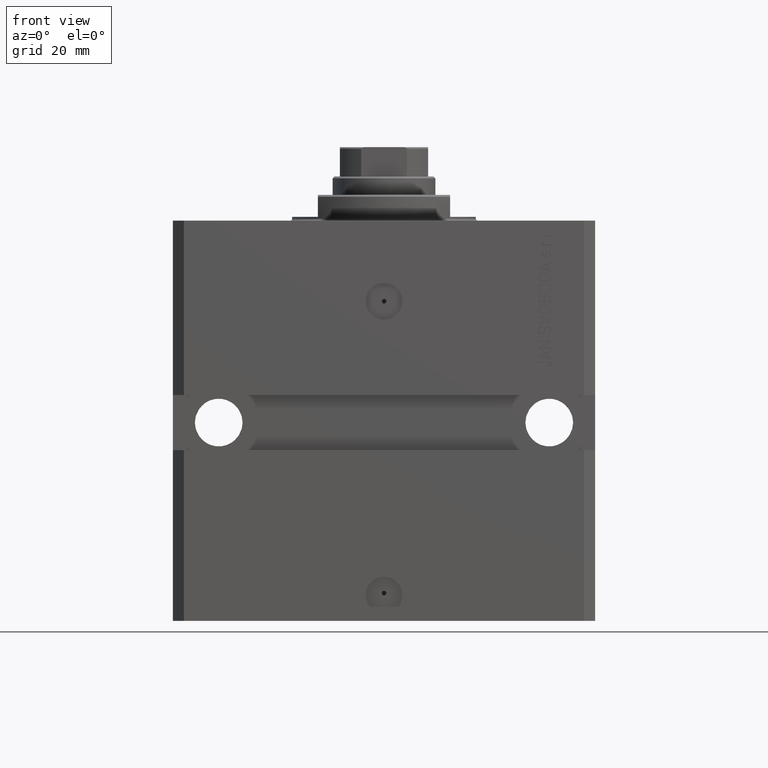
[diagram: clean part render]
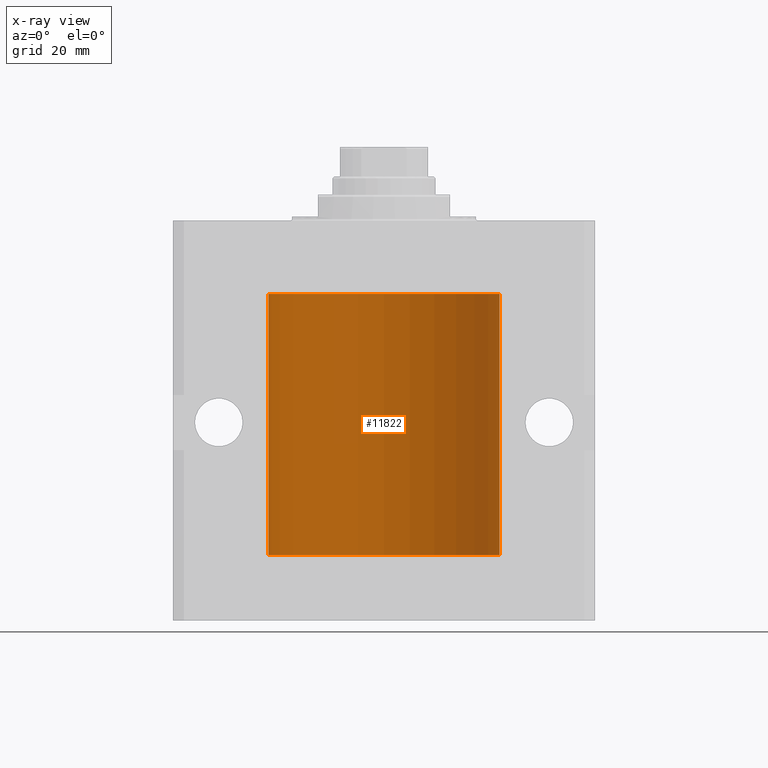
[diagram: x-ray — body ghosted, one internal face saturated and labeled with its STEP entity id]
A machine part, front view, then the same camera in x-ray: the body is ghosted and one INTERNAL B-rep face — a face not visible from any outside direction — is saturated and labeled: STEP entity #11822.
In plain terms, the highlighted cylindrical surface (partial cylindrical patch) has radius 31.5 mm, axis along (0, 0, 1).
Its self-contained STEP definition (entity closure, byte-faithful):
#694 = CARTESIAN_POINT ( 'NONE',  ( 31.49379899281760942, 0.6250000000003405054, -88.16310352862699062 ) ) ;
#846 = ORIENTED_EDGE ( 'NONE', *, *, #3699, .T. ) ;
#933 = CARTESIAN_POINT ( 'NONE',  ( 31.49851501686590893, 0.3150934959385818801, -88.54594721883859165 ) ) ;
#1039 = VERTEX_POINT ( 'NONE', #9160 ) ;
#1500 = ORIENTED_EDGE ( 'NONE', *, *, #2345, .T. ) ;
#1519 = CARTESIAN_POINT ( 'NONE',  ( -31.49380014137585704, 0.6249421240571523262, -28.83671479190291365 ) ) ;
#1676 = CIRCLE ( 'NONE', #12005, 31.50000000000000000 ) ;
#2323 = CARTESIAN_POINT ( 'NONE',  ( -31.50000000000000000, 3.857637417314161900E-15, -91.09999999999999432 ) ) ;
#2345 = EDGE_CURVE ( 'NONE', #23183, #36457, #27864, .T. ) ;
#3412 = B_SPLINE_CURVE_WITH_KNOTS ( 'NONE', 3,
 ( #41992, #34525, #4193, #933, #26557, #8152, #694, #11890 ),
 .UNSPECIFIED., .F., .F.,
 ( 4, 2, 2, 4 ),
 ( 2.422664849601941982E-18, 0.0002443157997801665674, 0.0004886315995603306411, 0.0009772631991206588969 ),
 .UNSPECIFIED. ) ;
#3699 = EDGE_CURVE ( 'NONE', #29976, #6011, #1676, .T. ) ;
#4193 = CARTESIAN_POINT ( 'NONE',  ( 31.49966575203785268, 0.1636755595825563903, -88.60873030821190355 ) ) ;
#4700 = CARTESIAN_POINT ( 'NONE',  ( -31.49379784581975272, 0.6250577973157667167, -88.16284184848848327 ) ) ;
#4936 = CARTESIAN_POINT ( 'NONE',  ( -31.49966591610108679, 0.1636376958180631447, -87.39126189995837990 ) ) ;
#5127 = AXIS2_PLACEMENT_3D ( 'NONE', #12760, #8289, #9025 ) ;
#5150 = CARTESIAN_POINT ( 'NONE',  ( -31.50000000000000000, 6.758224196026156211E-15, -28.37500000000000355 ) ) ;
#5254 = CARTESIAN_POINT ( 'NONE',  ( -31.49851563474691218, 0.3150284575672402942, -28.45401791159624239 ) ) ;
#5508 = CARTESIAN_POINT ( 'NONE',  ( -31.50000000000000000, 6.758224196026156211E-15, -28.37500000000000355 ) ) ;
#6011 = VERTEX_POINT ( 'NONE', #41294 ) ;
#6215 = CARTESIAN_POINT ( 'NONE',  ( 31.50000000000000000, -1.285405811941255817E-15, -29.62500000000000000 ) ) ;
#6431 = CARTESIAN_POINT ( 'NONE',  ( 31.50000000000000000, 0.1631291455194388007, -28.37500000000014921 ) ) ;
#6876 = ORIENTED_EDGE ( 'NONE', *, *, #34959, .F. ) ;
#7225 = B_SPLINE_CURVE_WITH_KNOTS ( 'NONE', 3,
 ( #5508, #8971, #39332, #5254, #20411, #35601, #1519, #16674, #31850, #47012, #43298, #12956 ),
 .UNSPECIFIED., .F., .F.,
 ( 4, 2, 2, 2, 2, 4 ),
 ( 5.368244977247106827E-19, 0.0002442604562134703173, 0.0004885209124269400925, 0.0009770418248538795345, 0.001465562737280818977, 0.001954083649707758635 ),
 .UNSPECIFIED. ) ;
#8152 = CARTESIAN_POINT ( 'NONE',  ( 31.49527883250257432, 0.5574151849338155884, -88.32638608454756479 ) ) ;
#8289 = DIRECTION ( 'NONE',  ( -0.000000000000000000, -0.000000000000000000, 1.000000000000000000 ) ) ;
#8413 = CARTESIAN_POINT ( 'NONE',  ( -31.49770767031178664, 0.3843648832734375964, -87.50046081259652908 ) ) ;
#8658 = CARTESIAN_POINT ( 'NONE',  ( -31.49999999999999289, 0.08259258789479427543, -87.37500000000002842 ) ) ;
#8715 = EDGE_CURVE ( 'NONE', #36457, #27745, #34090, .T. ) ;
#8971 = CARTESIAN_POINT ( 'NONE',  ( -31.49999999999999289, 0.08259258789479796692, -28.37500000000000711 ) ) ;
#9025 = DIRECTION ( 'NONE',  ( 1.000000000000000000, 0.000000000000000000, 0.000000000000000000 ) ) ;
#9160 = CARTESIAN_POINT ( 'NONE',  ( -31.50000000000000000, 3.067039406470727369E-16, -87.37500000000001421 ) ) ;
#9439 = CARTESIAN_POINT ( 'NONE',  ( 31.49853627283157209, 0.3253078817183364113, -28.44140989403645747 ) ) ;
#9482 = DIRECTION ( 'NONE',  ( 0.000000000000000000, 0.000000000000000000, 1.000000000000000000 ) ) ;
#10501 = DIRECTION ( 'NONE',  ( -0.000000000000000000, -0.000000000000000000, 1.000000000000000000 ) ) ;
#10720 = ORIENTED_EDGE ( 'NONE', *, *, #15875, .T. ) ;
#10742 = CARTESIAN_POINT ( 'NONE',  ( 31.49379899281745665, 0.6250000000082756024, -28.99999999999905853 ) ) ;
#10811 = LINE ( 'NONE', #21742, #29089 ) ;
#11339 = CARTESIAN_POINT ( 'NONE',  ( 31.50000000000000000, 0.000000000000000000, -91.09999999999999432 ) ) ;
#11822 = ADVANCED_FACE ( 'NONE', ( #27180 ), #27908, .F. ) ;
#11890 = CARTESIAN_POINT ( 'NONE',  ( 31.49379899281745665, 0.6250000000082825968, -87.99999999999904787 ) ) ;
#12005 = AXIS2_PLACEMENT_3D ( 'NONE', #17177, #9482, #24637 ) ;
#12697 = CARTESIAN_POINT ( 'NONE',  ( 31.50000000000000711, 0.08261130139621915280, -29.62499999999999289 ) ) ;
#12756 = CARTESIAN_POINT ( 'NONE',  ( 31.49379899281745665, 0.6250000000082825968, -87.99999999999904787 ) ) ;
#12760 = CARTESIAN_POINT ( 'NONE',  ( 0.000000000000000000, 0.000000000000000000, -91.09999999999999432 ) ) ;
#12883 = CARTESIAN_POINT ( 'NONE',  ( -31.50000000000000000, 0.1631661150515255343, -88.62499999999985789 ) ) ;
#12956 = CARTESIAN_POINT ( 'NONE',  ( -31.50000000000006395, 3.480980906124966778E-13, -29.62500000000323297 ) ) ;
#13659 = CARTESIAN_POINT ( 'NONE',  ( 31.49966575203784558, 0.1636755595825546972, -29.60873030821186802 ) ) ;
#14052 = CARTESIAN_POINT ( 'NONE',  ( 31.50000000000006395, 3.442404531757459093E-13, -28.37499999999677058 ) ) ;
#15875 = EDGE_CURVE ( 'NONE', #27745, #38909, #17605, .T. ) ;
#16648 = CARTESIAN_POINT ( 'NONE',  ( 31.49379899281745665, 0.6250000000082756024, -28.99999999999905853 ) ) ;
#16674 = CARTESIAN_POINT ( 'NONE',  ( -31.49379784581975983, 0.6250577973157598333, -29.16284184848847971 ) ) ;
#17177 = CARTESIAN_POINT ( 'NONE',  ( 0.000000000000000000, 0.000000000000000000, -20.00000000000000355 ) ) ;
#17209 = VERTEX_POINT ( 'NONE', #49158 ) ;
#17379 = CARTESIAN_POINT ( 'NONE',  ( 31.50000000000006395, 3.442404531757459093E-13, -28.37499999999677058 ) ) ;
#17605 = B_SPLINE_CURVE_WITH_KNOTS ( 'NONE', 3,
 ( #16648, #43268, #28569, #9439, #6431, #17379 ),
 .UNSPECIFIED., .F., .F.,
 ( 4, 2, 4 ),
 ( 0.0009772631991206452359, 0.001465673424414174614, 0.001954083649707703992 ),
 .UNSPECIFIED. ) ;
#18310 = CARTESIAN_POINT ( 'NONE',  ( 31.49526225382467359, 0.5586305680866429091, -87.67476160622149450 ) ) ;
#18518 = DIRECTION ( 'NONE',  ( -0.000000000000000000, -0.000000000000000000, 1.000000000000000000 ) ) ;
#19641 = EDGE_CURVE ( 'NONE', #1039, #17209, #10811, .T. ) ;
#19920 = DIRECTION ( 'NONE',  ( 0.000000000000000000, 0.000000000000000000, 1.000000000000000000 ) ) ;
#20279 = CIRCLE ( 'NONE', #48071, 31.50000000000000000 ) ;
#20411 = CARTESIAN_POINT ( 'NONE',  ( -31.49770767031179730, 0.3843648832734374854, -28.50046081259655040 ) ) ;
#20800 = CARTESIAN_POINT ( 'NONE',  ( 31.50000000000000000, 0.000000000000000000, -91.09999999999999432 ) ) ;
#21400 = ORIENTED_EDGE ( 'NONE', *, *, #28824, .T. ) ;
#21742 = CARTESIAN_POINT ( 'NONE',  ( -31.50000000000000000, 3.857637417314161900E-15, -91.09999999999999432 ) ) ;
#22522 = CARTESIAN_POINT ( 'NONE',  ( -31.50000000000000000, 3.857637417314161900E-15, -91.09999999999999432 ) ) ;
#22525 = DIRECTION ( 'NONE',  ( -0.000000000000000000, -0.000000000000000000, 1.000000000000000000 ) ) ;
#22822 = LINE ( 'NONE', #20800, #39296 ) ;
#23183 = VERTEX_POINT ( 'NONE', #36134 ) ;
#23456 = CARTESIAN_POINT ( 'NONE',  ( 31.50000000000000000, -2.492939093807799249E-15, -88.62500000000000000 ) ) ;
#23577 = CARTESIAN_POINT ( 'NONE',  ( -31.49528028230855270, 0.5573323339569609125, -87.67349008819324752 ) ) ;
#23692 = ORIENTED_EDGE ( 'NONE', *, *, #19641, .F. ) ;
#23817 = CARTESIAN_POINT ( 'NONE',  ( -31.49853548231895672, 0.3253851488062161623, -88.55855470525688133 ) ) ;
#24598 = ORIENTED_EDGE ( 'NONE', *, *, #43236, .F. ) ;
#24637 = DIRECTION ( 'NONE',  ( 1.000000000000000000, 0.000000000000000000, 0.000000000000000000 ) ) ;
#24768 = ORIENTED_EDGE ( 'NONE', *, *, #32102, .T. ) ;
#25098 = EDGE_CURVE ( 'NONE', #39667, #6011, #41441, .T. ) ;
#26557 = CARTESIAN_POINT ( 'NONE',  ( 31.49770674525946390, 0.3844410175904657834, -88.49948347834467199 ) ) ;
#27125 = CARTESIAN_POINT ( 'NONE',  ( 0.000000000000000000, 0.000000000000000000, -91.09999999999999432 ) ) ;
#27180 = FACE_OUTER_BOUND ( 'NONE', #47718, .T. ) ;
#27501 = VERTEX_POINT ( 'NONE', #23456 ) ;
#27527 = DIRECTION ( 'NONE',  ( -0.000000000000000000, -0.000000000000000000, 1.000000000000000000 ) ) ;
#27745 = VERTEX_POINT ( 'NONE', #10742 ) ;
#27864 = LINE ( 'NONE', #35608, #31818 ) ;
#27908 = CYLINDRICAL_SURFACE ( 'NONE', #5127, 31.50000000000000000 ) ;
#28092 = CARTESIAN_POINT ( 'NONE',  ( 31.49851501686590893, 0.3150934959385772727, -29.54594721883858099 ) ) ;
#28290 = CARTESIAN_POINT ( 'NONE',  ( -31.49380014137585704, 0.6249421240571516600, -87.83671479190292075 ) ) ;
#28569 = CARTESIAN_POINT ( 'NONE',  ( 31.49526225382468070, 0.5586305680866378021, -28.67476160622149806 ) ) ;
#28720 = B_SPLINE_CURVE_WITH_KNOTS ( 'NONE', 3,
 ( #42178, #34473, #18310, #41704, #33988, #37972 ),
 .UNSPECIFIED., .F., .F.,
 ( 4, 2, 4 ),
 ( 0.0009772631991206588969, 0.001465673424414194563, 0.001954083649707730446 ),
 .UNSPECIFIED. ) ;
#28824 = EDGE_CURVE ( 'NONE', #39667, #17209, #7225, .T. ) ;
#28870 = VERTEX_POINT ( 'NONE', #44024 ) ;
#29089 = VECTOR ( 'NONE', #18518, 1000.000000000000000 ) ;
#29803 = ORIENTED_EDGE ( 'NONE', *, *, #30517, .T. ) ;
#29976 = VERTEX_POINT ( 'NONE', #32278 ) ;
#30158 = B_SPLINE_CURVE_WITH_KNOTS ( 'NONE', 3,
 ( #31780, #8658, #4936, #43227, #8413, #23577, #28290, #4700, #43481, #23817, #12883, #46940 ),
 .UNSPECIFIED., .F., .F.,
 ( 4, 2, 2, 2, 2, 4 ),
 ( 3.076673421627548640E-18, 0.0002442604562134844661, 0.0004885209124269657881, 0.0009770418248538990501, 0.001465562737280832204, 0.001954083649707765141 ),
 .UNSPECIFIED. ) ;
#30517 = EDGE_CURVE ( 'NONE', #38909, #29976, #48395, .T. ) ;
#31679 = CARTESIAN_POINT ( 'NONE',  ( 31.50000000000000000, -1.285405811941255817E-15, -29.62500000000000000 ) ) ;
#31780 = CARTESIAN_POINT ( 'NONE',  ( -31.50000000000000000, 3.067039406470727369E-16, -87.37500000000001421 ) ) ;
#31818 = VECTOR ( 'NONE', #39587, 1000.000000000000000 ) ;
#31850 = CARTESIAN_POINT ( 'NONE',  ( -31.49526081842315151, 0.5587119163470772865, -29.32511513093050937 ) ) ;
#32102 = EDGE_CURVE ( 'NONE', #1039, #41858, #30158, .T. ) ;
#32278 = CARTESIAN_POINT ( 'NONE',  ( 31.50000000000000000, 0.000000000000000000, -20.00000000000000355 ) ) ;
#32421 = LINE ( 'NONE', #2323, #48617 ) ;
#32864 = VERTEX_POINT ( 'NONE', #12756 ) ;
#33988 = CARTESIAN_POINT ( 'NONE',  ( 31.50000000000000000, 0.1631291455194407158, -87.37500000000014211 ) ) ;
#34090 = B_SPLINE_CURVE_WITH_KNOTS ( 'NONE', 3,
 ( #6215, #12697, #13659, #28092, #47725, #36061, #43532, #46757 ),
 .UNSPECIFIED., .F., .F.,
 ( 4, 2, 2, 4 ),
 ( 1.823304250957730297E-18, 0.0002443157997801608753, 0.0004886315995603199075, 0.0009772631991206452359 ),
 .UNSPECIFIED. ) ;
#34205 = DIRECTION ( 'NONE',  ( -0.000000000000000000, -0.000000000000000000, 1.000000000000000000 ) ) ;
#34473 = CARTESIAN_POINT ( 'NONE',  ( 31.49379899281762363, 0.6249999999996236344, -87.83697036533062885 ) ) ;
#34525 = CARTESIAN_POINT ( 'NONE',  ( 31.50000000000000000, 0.08261130139621999935, -88.62499999999997158 ) ) ;
#34959 = EDGE_CURVE ( 'NONE', #28870, #41858, #32421, .T. ) ;
#35601 = CARTESIAN_POINT ( 'NONE',  ( -31.49528028230855270, 0.5573323339569594692, -28.67349008819320844 ) ) ;
#35608 = CARTESIAN_POINT ( 'NONE',  ( 31.50000000000000000, 0.000000000000000000, -91.09999999999999432 ) ) ;
#36033 = ORIENTED_EDGE ( 'NONE', *, *, #25098, .F. ) ;
#36061 = CARTESIAN_POINT ( 'NONE',  ( 31.49527883250257432, 0.5574151849338060405, -29.32638608454755058 ) ) ;
#36134 = CARTESIAN_POINT ( 'NONE',  ( 31.50000000000006395, 3.442404755096224483E-13, -87.37499999999675993 ) ) ;
#36435 = CARTESIAN_POINT ( 'NONE',  ( -31.50000000000006395, 3.480981129463732167E-13, -88.62500000000324007 ) ) ;
#36457 = VERTEX_POINT ( 'NONE', #31679 ) ;
#37972 = CARTESIAN_POINT ( 'NONE',  ( 31.50000000000006395, 3.442404755096224483E-13, -87.37499999999675993 ) ) ;
#38229 = VECTOR ( 'NONE', #22525, 1000.000000000000000 ) ;
#38909 = VERTEX_POINT ( 'NONE', #14052 ) ;
#39296 = VECTOR ( 'NONE', #27527, 1000.000000000000000 ) ;
#39305 = ORIENTED_EDGE ( 'NONE', *, *, #41643, .T. ) ;
#39332 = CARTESIAN_POINT ( 'NONE',  ( -31.49966591610109390, 0.1636376958180632002, -28.39126189995839411 ) ) ;
#39587 = DIRECTION ( 'NONE',  ( -0.000000000000000000, -0.000000000000000000, 1.000000000000000000 ) ) ;
#39667 = VERTEX_POINT ( 'NONE', #5150 ) ;
#39820 = ORIENTED_EDGE ( 'NONE', *, *, #8715, .T. ) ;
#40682 = EDGE_CURVE ( 'NONE', #43875, #27501, #22822, .T. ) ;
#41294 = CARTESIAN_POINT ( 'NONE',  ( -31.50000000000000000, 3.857637417314161900E-15, -20.00000000000000355 ) ) ;
#41441 = LINE ( 'NONE', #22522, #43605 ) ;
#41643 = EDGE_CURVE ( 'NONE', #32864, #23183, #28720, .T. ) ;
#41704 = CARTESIAN_POINT ( 'NONE',  ( 31.49853627283156499, 0.3253078817183396310, -87.44140989403643971 ) ) ;
#41858 = VERTEX_POINT ( 'NONE', #36435 ) ;
#41992 = CARTESIAN_POINT ( 'NONE',  ( 31.50000000000000000, -2.492939093807799249E-15, -88.62500000000000000 ) ) ;
#42178 = CARTESIAN_POINT ( 'NONE',  ( 31.49379899281745665, 0.6250000000082825968, -87.99999999999904787 ) ) ;
#42316 = DIRECTION ( 'NONE',  ( 1.000000000000000000, 0.000000000000000000, 0.000000000000000000 ) ) ;
#43227 = CARTESIAN_POINT ( 'NONE',  ( -31.49851563474690508, 0.3150284575672406828, -87.45401791159622462 ) ) ;
#43236 = EDGE_CURVE ( 'NONE', #43875, #28870, #20279, .T. ) ;
#43268 = CARTESIAN_POINT ( 'NONE',  ( 31.49379899281762363, 0.6249999999996150857, -28.83697036533064306 ) ) ;
#43298 = CARTESIAN_POINT ( 'NONE',  ( -31.50000000000000000, 0.1631661150515231473, -29.62499999999986144 ) ) ;
#43418 = CARTESIAN_POINT ( 'NONE',  ( 31.50000000000000000, 0.000000000000000000, -91.09999999999999432 ) ) ;
#43481 = CARTESIAN_POINT ( 'NONE',  ( -31.49526081842315151, 0.5587119163470751770, -88.32511513093052713 ) ) ;
#43532 = CARTESIAN_POINT ( 'NONE',  ( 31.49379899281760231, 0.6250000000003351763, -29.16310352862698352 ) ) ;
#43605 = VECTOR ( 'NONE', #34205, 1000.000000000000000 ) ;
#43875 = VERTEX_POINT ( 'NONE', #43418 ) ;
#44024 = CARTESIAN_POINT ( 'NONE',  ( -31.50000000000000000, 3.857637417314161900E-15, -91.09999999999999432 ) ) ;
#46757 = CARTESIAN_POINT ( 'NONE',  ( 31.49379899281745665, 0.6250000000082756024, -28.99999999999905853 ) ) ;
#46857 = ORIENTED_EDGE ( 'NONE', *, *, #40682, .T. ) ;
#46940 = CARTESIAN_POINT ( 'NONE',  ( -31.50000000000006395, 3.480981129463732167E-13, -88.62500000000324007 ) ) ;
#47012 = CARTESIAN_POINT ( 'NONE',  ( -31.49853548231893541, 0.3253851488062241559, -29.55855470525682094 ) ) ;
#47718 = EDGE_LOOP ( 'NONE', ( #6876, #24598, #46857, #48573, #39305, #1500, #39820, #10720, #29803, #846, #36033, #21400, #23692, #24768 ) ) ;
#47725 = CARTESIAN_POINT ( 'NONE',  ( 31.49770674525947101, 0.3844410175904570126, -29.49948347834465068 ) ) ;
#47965 = EDGE_CURVE ( 'NONE', #27501, #32864, #3412, .T. ) ;
#48071 = AXIS2_PLACEMENT_3D ( 'NONE', #27125, #19920, #42316 ) ;
#48395 = LINE ( 'NONE', #11339, #38229 ) ;
#48573 = ORIENTED_EDGE ( 'NONE', *, *, #47965, .T. ) ;
#48617 = VECTOR ( 'NONE', #10501, 1000.000000000000000 ) ;
#49158 = CARTESIAN_POINT ( 'NONE',  ( -31.50000000000006395, 3.480980906124966778E-13, -29.62500000000323297 ) ) ;